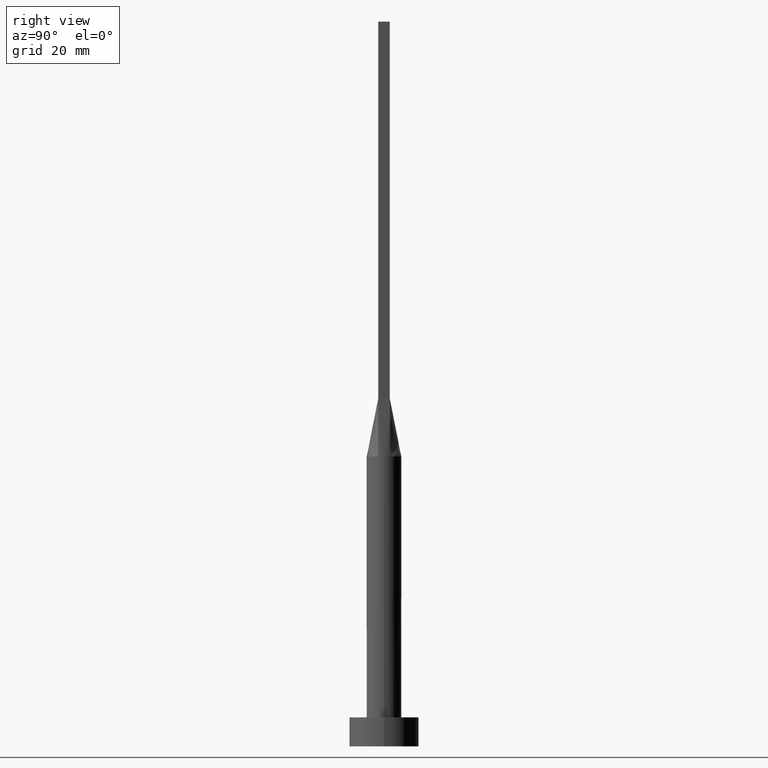
[diagram: clean part render]
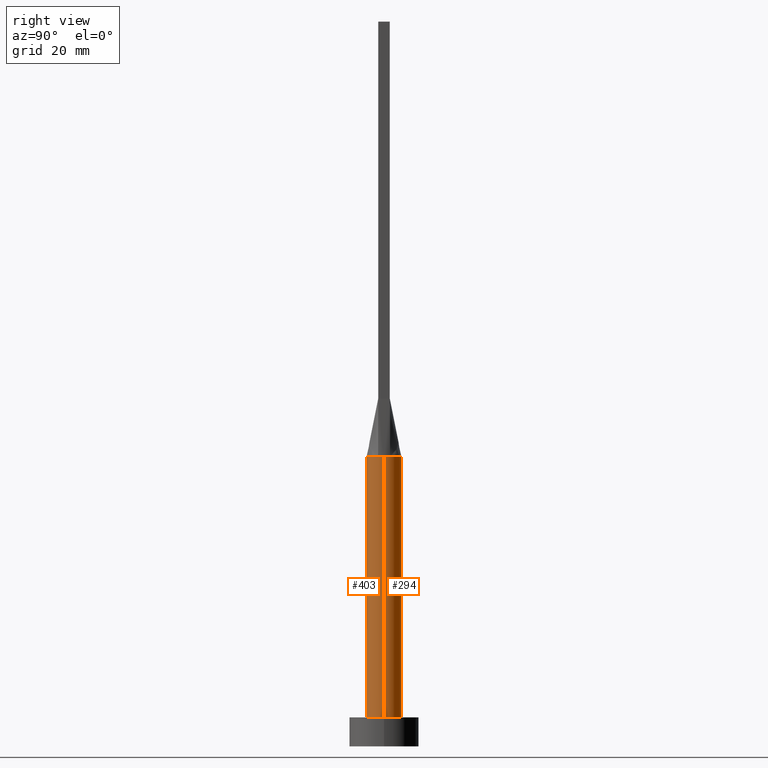
[diagram: same view with one multi-face feature highlighted, each face labeled with its STEP entity id]
A machine part, right view. The highlighted faces form ONE feature: a constant-radius fillet chain: 2 tangent blend faces with common blend radius 3 mm. The faces share edges in the B-rep.
Their STEP definitions:
[1] entity #294 (Cylinder):
#10 = VECTOR ( 'NONE', #325, 1000.000000000000000 ) ;
#19 = CARTESIAN_POINT ( 'NONE',  ( -2.819429393986302657, 1.025247261300842760, 49.99999999999999289 ) ) ;
#20 = CARTESIAN_POINT ( 'NONE',  ( -2.115507543051069916, 2.149870311632977593, 49.99999999999999289 ) ) ;
#25 = DIRECTION ( 'NONE',  ( -0.000000000000000000, -0.000000000000000000, -1.000000000000000000 ) ) ;
#41 = VECTOR ( 'NONE', #25, 1000.000000000000000 ) ;
#43 = LINE ( 'NONE', #162, #41 ) ;
#51 = CARTESIAN_POINT ( 'NONE',  ( -2.739088299662392423, 1.246032108968142316, 49.99999999999998579 ) ) ;
#54 = CARTESIAN_POINT ( 'NONE',  ( -0.3502136323054376721, 2.999999999999999112, 50.00000000000001421 ) ) ;
#75 = DIRECTION ( 'NONE',  ( -1.000000000000000000, 0.000000000000000000, 0.000000000000000000 ) ) ;
#97 = VERTEX_POINT ( 'NONE', #142 ) ;
#102 = EDGE_CURVE ( 'NONE', #249, #165, #225, .T. ) ;
#109 = DIRECTION ( 'NONE',  ( 0.000000000000000000, 0.000000000000000000, 1.000000000000000000 ) ) ;
#118 = VERTEX_POINT ( 'NONE', #511 ) ;
#120 = VERTEX_POINT ( 'NONE', #19 ) ;
#122 = EDGE_CURVE ( 'NONE', #118, #120, #549, .T. ) ;
#136 = CARTESIAN_POINT ( 'NONE',  ( -2.819429393986302657, 1.025247261300842760, 49.99999999999999289 ) ) ;
#139 = CARTESIAN_POINT ( 'NONE',  ( -3.000000000000000444, 0.000000000000000000, 49.99999999999999289 ) ) ;
#142 = CARTESIAN_POINT ( 'NONE',  ( 3.000000000000000444, 7.514166843208513631E-18, 49.99999999999998579 ) ) ;
#145 = CIRCLE ( 'NONE', #490, 3.000000000000000444 ) ;
#149 = CARTESIAN_POINT ( 'NONE',  ( 2.819412401233197141, 1.025240989080170362, 49.99999999999999289 ) ) ;
#153 = ORIENTED_EDGE ( 'NONE', *, *, #299, .T. ) ;
#162 = CARTESIAN_POINT ( 'NONE',  ( 3.000000000000000444, 3.673940397442059868E-16, 49.99999999999999289 ) ) ;
#163 = EDGE_LOOP ( 'NONE', ( #241, #153, #436, #194, #524, #251 ) ) ;
#165 = VERTEX_POINT ( 'NONE', #227 ) ;
#176 = DIRECTION ( 'NONE',  ( 0.000000000000000000, 0.000000000000000000, 1.000000000000000000 ) ) ;
#187 = CARTESIAN_POINT ( 'NONE',  ( 1.338960936578149630, 2.706038443291637563, 50.00000000000000000 ) ) ;
#194 = ORIENTED_EDGE ( 'NONE', *, *, #102, .F. ) ;
#196 = CARTESIAN_POINT ( 'NONE',  ( 0.000000000000000000, 0.000000000000000000, 49.99999999999999289 ) ) ;
#215 = CARTESIAN_POINT ( 'NONE',  ( 0.000000000000000000, 0.000000000000000000, 49.99999999999999289 ) ) ;
#222 = EDGE_CURVE ( 'NONE', #97, #118, #145, .T. ) ;
#225 = LINE ( 'NONE', #139, #10 ) ;
#227 = CARTESIAN_POINT ( 'NONE',  ( -3.000000000000000444, 0.000000000000000000, 5.000000000000000000 ) ) ;
#230 = CARTESIAN_POINT ( 'NONE',  ( 2.739088299662392867, 1.246032108968142538, 50.00000000000000711 ) ) ;
#238 = DIRECTION ( 'NONE',  ( -0.000000000000000000, -0.000000000000000000, -1.000000000000000000 ) ) ;
#241 = ORIENTED_EDGE ( 'NONE', *, *, #222, .F. ) ;
#249 = VERTEX_POINT ( 'NONE', #518 ) ;
#251 = ORIENTED_EDGE ( 'NONE', *, *, #122, .F. ) ;
#265 = AXIS2_PLACEMENT_3D ( 'NONE', #479, #238, #75 ) ;
#272 = CARTESIAN_POINT ( 'NONE',  ( 2.314486317179579977, 1.928337902455807384, 50.00000000000001421 ) ) ;
#278 = CARTESIAN_POINT ( 'NONE',  ( -1.627925520694712747, 2.539128397820341831, 50.00000000000000000 ) ) ;
#281 = CARTESIAN_POINT ( 'NONE',  ( -2.625980160873452096, 1.476334031700886396, 50.00000000000000711 ) ) ;
#284 = DIRECTION ( 'NONE',  ( 1.000000000000000000, 0.000000000000000000, 0.000000000000000000 ) ) ;
#294 = ADVANCED_FACE ( 'NONE', ( #340 ), #476, .T. ) ;
#299 = EDGE_CURVE ( 'NONE', #97, #428, #43, .T. ) ;
#307 = DIRECTION ( 'NONE',  ( 1.000000000000000000, 0.000000000000000000, 0.000000000000000000 ) ) ;
#317 = CARTESIAN_POINT ( 'NONE',  ( -2.314486317179579977, 1.928337902455808051, 50.00000000000000711 ) ) ;
#325 = DIRECTION ( 'NONE',  ( -0.000000000000000000, -0.000000000000000000, -1.000000000000000000 ) ) ;
#328 = AXIS2_PLACEMENT_3D ( 'NONE', #215, #176, #307 ) ;
#340 = FACE_OUTER_BOUND ( 'NONE', #163, .T. ) ;
#349 = CIRCLE ( 'NONE', #328, 3.000000000000000444 ) ;
#364 = CARTESIAN_POINT ( 'NONE',  ( 2.625980160873452540, 1.476334031700886618, 50.00000000000000711 ) ) ;
#378 = CARTESIAN_POINT ( 'NONE',  ( -0.6998073349918608743, 2.936959335800557014, 50.00000000000000000 ) ) ;
#417 = CARTESIAN_POINT ( 'NONE',  ( 3.000000000000000444, 3.673940397442059868E-16, 5.000000000000000000 ) ) ;
#428 = VERTEX_POINT ( 'NONE', #417 ) ;
#436 = ORIENTED_EDGE ( 'NONE', *, *, #530, .T. ) ;
#455 = CARTESIAN_POINT ( 'NONE',  ( 0.3502136323054376721, 3.000000000000000444, 50.00000000000000000 ) ) ;
#458 = CARTESIAN_POINT ( 'NONE',  ( 2.115507543051069916, 2.149870311632976705, 50.00000000000000711 ) ) ;
#465 = CARTESIAN_POINT ( 'NONE',  ( 0.6998073349918605413, 2.936959335800557014, 49.99999999999998579 ) ) ;
#476 = CYLINDRICAL_SURFACE ( 'NONE', #265, 3.000000000000000444 ) ;
#479 = CARTESIAN_POINT ( 'NONE',  ( 0.000000000000000000, 0.000000000000000000, 49.99999999999999289 ) ) ;
#490 = AXIS2_PLACEMENT_3D ( 'NONE', #196, #109, #284 ) ;
#507 = CARTESIAN_POINT ( 'NONE',  ( 1.627925520694712080, 2.539128397820340943, 49.99999999999998579 ) ) ;
#511 = CARTESIAN_POINT ( 'NONE',  ( 2.819412401233197141, 1.025240989080170362, 49.99999999999999289 ) ) ;
#518 = CARTESIAN_POINT ( 'NONE',  ( -3.000000000000000444, -1.370010780910362699E-16, 49.99999999999998579 ) ) ;
#520 = DIRECTION ( 'NONE',  ( 1.000000000000000000, 0.000000000000000000, 0.000000000000000000 ) ) ;
#524 = ORIENTED_EDGE ( 'NONE', *, *, #557, .F. ) ;
#529 = DIRECTION ( 'NONE',  ( 0.000000000000000000, 0.000000000000000000, 1.000000000000000000 ) ) ;
#530 = EDGE_CURVE ( 'NONE', #428, #165, #543, .T. ) ;
#542 = CARTESIAN_POINT ( 'NONE',  ( -1.338960936578149408, 2.706038443291637119, 49.99999999999998579 ) ) ;
#543 = CIRCLE ( 'NONE', #554, 3.000000000000000444 ) ;
#549 = B_SPLINE_CURVE_WITH_KNOTS ( 'NONE', 3,
 ( #149, #230, #364, #272, #458, #507, #187, #465, #455, #54, #378, #542, #278, #20, #317, #281, #51, #136 ),
 .UNSPECIFIED., .F., .F.,
 ( 4, 2, 2, 2, 2, 2, 2, 2, 4 ),
 ( 0.000000000000000000, 0.1249999999999998890, 0.2499999999999997780, 0.3749999999999997780, 0.4999999999999997780, 0.6249999999999997780, 0.7499999999999997780, 0.8749999999999998890, 1.000000000000000000 ),
 .UNSPECIFIED. ) ;
#554 = AXIS2_PLACEMENT_3D ( 'NONE', #577, #529, #520 ) ;
#557 = EDGE_CURVE ( 'NONE', #120, #249, #349, .T. ) ;
#577 = CARTESIAN_POINT ( 'NONE',  ( 0.000000000000000000, 0.000000000000000000, 5.000000000000000000 ) ) ;
[2] entity #403 (Cylinder):
#10 = VECTOR ( 'NONE', #325, 1000.000000000000000 ) ;
#25 = DIRECTION ( 'NONE',  ( -0.000000000000000000, -0.000000000000000000, -1.000000000000000000 ) ) ;
#41 = VECTOR ( 'NONE', #25, 1000.000000000000000 ) ;
#43 = LINE ( 'NONE', #162, #41 ) ;
#48 = EDGE_CURVE ( 'NONE', #373, #477, #252, .T. ) ;
#52 = CARTESIAN_POINT ( 'NONE',  ( 2.819430526142641558, -1.025247683279451261, 49.99999999999999289 ) ) ;
#59 = CIRCLE ( 'NONE', #442, 3.000000000000000444 ) ;
#97 = VERTEX_POINT ( 'NONE', #142 ) ;
#102 = EDGE_CURVE ( 'NONE', #249, #165, #225, .T. ) ;
#105 = DIRECTION ( 'NONE',  ( -0.000000000000000000, -0.000000000000000000, -1.000000000000000000 ) ) ;
#107 = ORIENTED_EDGE ( 'NONE', *, *, #381, .F. ) ;
#139 = CARTESIAN_POINT ( 'NONE',  ( -3.000000000000000444, 0.000000000000000000, 49.99999999999999289 ) ) ;
#142 = CARTESIAN_POINT ( 'NONE',  ( 3.000000000000000444, 7.514166843208513631E-18, 49.99999999999998579 ) ) ;
#155 = DIRECTION ( 'NONE',  ( 0.000000000000000000, 0.000000000000000000, 1.000000000000000000 ) ) ;
#157 = AXIS2_PLACEMENT_3D ( 'NONE', #170, #105, #287 ) ;
#160 = CARTESIAN_POINT ( 'NONE',  ( 0.000000000000000000, 0.000000000000000000, 49.99999999999999289 ) ) ;
#162 = CARTESIAN_POINT ( 'NONE',  ( 3.000000000000000444, 3.673940397442059868E-16, 49.99999999999999289 ) ) ;
#165 = VERTEX_POINT ( 'NONE', #227 ) ;
#170 = CARTESIAN_POINT ( 'NONE',  ( 0.000000000000000000, 0.000000000000000000, 49.99999999999999289 ) ) ;
#192 = DIRECTION ( 'NONE',  ( 1.000000000000000000, -1.776356839400250465E-15, 0.000000000000000000 ) ) ;
#203 = ORIENTED_EDGE ( 'NONE', *, *, #102, .T. ) ;
#206 = AXIS2_PLACEMENT_3D ( 'NONE', #494, #217, #361 ) ;
#208 = CIRCLE ( 'NONE', #405, 3.000000000000000444 ) ;
#217 = DIRECTION ( 'NONE',  ( 0.000000000000000000, 0.000000000000000000, 1.000000000000000000 ) ) ;
#225 = LINE ( 'NONE', #139, #10 ) ;
#226 = CARTESIAN_POINT ( 'NONE',  ( 0.000000000000000000, 0.000000000000000000, 5.000000000000000000 ) ) ;
#227 = CARTESIAN_POINT ( 'NONE',  ( -3.000000000000000444, 0.000000000000000000, 5.000000000000000000 ) ) ;
#234 = ORIENTED_EDGE ( 'NONE', *, *, #239, .F. ) ;
#239 = EDGE_CURVE ( 'NONE', #249, #373, #526, .T. ) ;
#249 = VERTEX_POINT ( 'NONE', #518 ) ;
#252 = CIRCLE ( 'NONE', #206, 3.000000000000000444 ) ;
#287 = DIRECTION ( 'NONE',  ( -1.000000000000000000, 0.000000000000000000, 0.000000000000000000 ) ) ;
#289 = CARTESIAN_POINT ( 'NONE',  ( 0.000000000000000000, 0.000000000000000000, 49.99999999999999289 ) ) ;
#299 = EDGE_CURVE ( 'NONE', #97, #428, #43, .T. ) ;
#316 = DIRECTION ( 'NONE',  ( 1.000000000000000000, 0.000000000000000000, 0.000000000000000000 ) ) ;
#325 = DIRECTION ( 'NONE',  ( -0.000000000000000000, -0.000000000000000000, -1.000000000000000000 ) ) ;
#337 = ORIENTED_EDGE ( 'NONE', *, *, #48, .F. ) ;
#342 = EDGE_LOOP ( 'NONE', ( #474, #107, #337, #234, #203, #486 ) ) ;
#361 = DIRECTION ( 'NONE',  ( 1.000000000000000000, 0.000000000000000000, 0.000000000000000000 ) ) ;
#363 = DIRECTION ( 'NONE',  ( 0.000000000000000000, 0.000000000000000000, 1.000000000000000000 ) ) ;
#373 = VERTEX_POINT ( 'NONE', #469 ) ;
#381 = EDGE_CURVE ( 'NONE', #477, #97, #59, .T. ) ;
#403 = ADVANCED_FACE ( 'NONE', ( #514 ), #581, .T. ) ;
#405 = AXIS2_PLACEMENT_3D ( 'NONE', #226, #363, #316 ) ;
#417 = CARTESIAN_POINT ( 'NONE',  ( 3.000000000000000444, 3.673940397442059868E-16, 5.000000000000000000 ) ) ;
#428 = VERTEX_POINT ( 'NONE', #417 ) ;
#434 = DIRECTION ( 'NONE',  ( 1.000000000000000000, 0.000000000000000000, 0.000000000000000000 ) ) ;
#442 = AXIS2_PLACEMENT_3D ( 'NONE', #160, #473, #192 ) ;
#469 = CARTESIAN_POINT ( 'NONE',  ( -2.819413526938078896, -1.025241406939938926, 49.99999999999999289 ) ) ;
#473 = DIRECTION ( 'NONE',  ( 0.000000000000000000, 0.000000000000000000, 1.000000000000000000 ) ) ;
#474 = ORIENTED_EDGE ( 'NONE', *, *, #299, .F. ) ;
#477 = VERTEX_POINT ( 'NONE', #52 ) ;
#482 = AXIS2_PLACEMENT_3D ( 'NONE', #289, #155, #434 ) ;
#485 = EDGE_CURVE ( 'NONE', #165, #428, #208, .T. ) ;
#486 = ORIENTED_EDGE ( 'NONE', *, *, #485, .T. ) ;
#494 = CARTESIAN_POINT ( 'NONE',  ( 0.000000000000000000, 0.000000000000000000, 49.99999999999999289 ) ) ;
#514 = FACE_OUTER_BOUND ( 'NONE', #342, .T. ) ;
#518 = CARTESIAN_POINT ( 'NONE',  ( -3.000000000000000444, -1.370010780910362699E-16, 49.99999999999998579 ) ) ;
#526 = CIRCLE ( 'NONE', #482, 3.000000000000000444 ) ;
#581 = CYLINDRICAL_SURFACE ( 'NONE', #157, 3.000000000000000444 ) ;